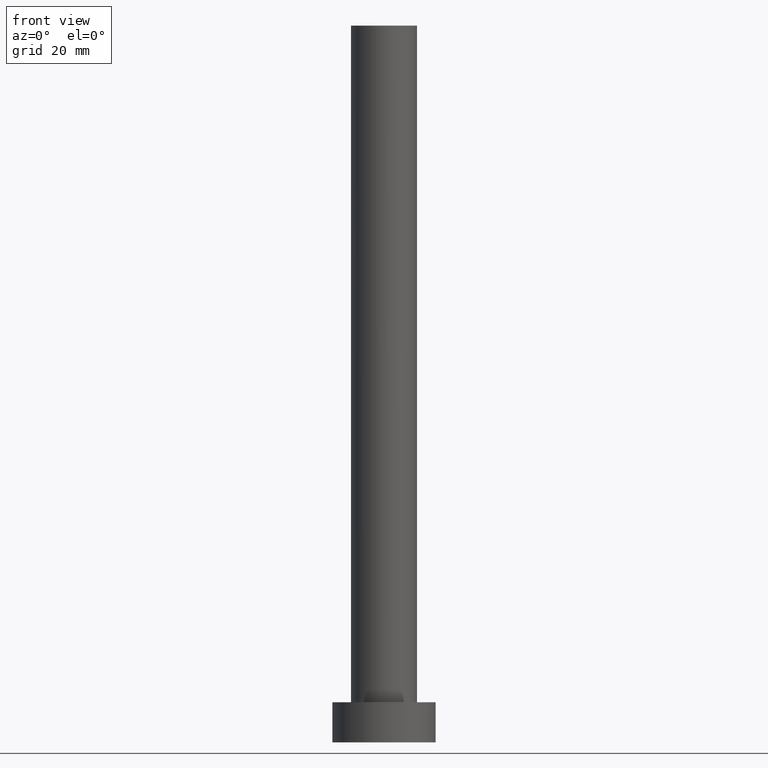
[diagram: clean part render]
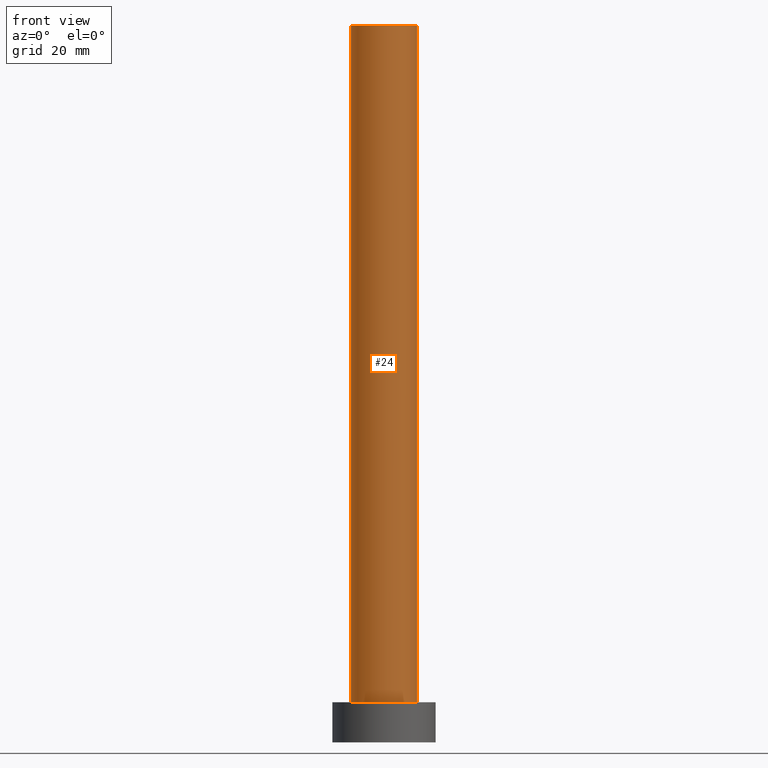
[diagram: same view with one face highlighted and labeled with its STEP entity id]
A machine part, front view. The second image highlights one B-rep face of the part: STEP entity #24.
In plain terms, the highlighted cylindrical surface (edge-blend (fillet) strip) has radius 5.75 mm, axis along (-0, -0, -1).
Its self-contained STEP definition (entity closure, byte-faithful):
#21 = VERTEX_POINT ( 'NONE', #156 ) ;
#24 = ADVANCED_FACE ( 'NONE', ( #229 ), #207, .T. ) ;
#27 = DIRECTION ( 'NONE',  ( -0.000000000000000000, -0.000000000000000000, -1.000000000000000000 ) ) ;
#28 = AXIS2_PLACEMENT_3D ( 'NONE', #77, #209, #48 ) ;
#47 = ORIENTED_EDGE ( 'NONE', *, *, #122, .F. ) ;
#48 = DIRECTION ( 'NONE',  ( 1.000000000000000000, 0.000000000000000000, 0.000000000000000000 ) ) ;
#49 = DIRECTION ( 'NONE',  ( -0.000000000000000000, -0.000000000000000000, -1.000000000000000000 ) ) ;
#52 = CARTESIAN_POINT ( 'NONE',  ( 0.000000000000000000, 0.000000000000000000, 125.0000000000000000 ) ) ;
#53 = AXIS2_PLACEMENT_3D ( 'NONE', #104, #27, #117 ) ;
#68 = ORIENTED_EDGE ( 'NONE', *, *, #142, .F. ) ;
#77 = CARTESIAN_POINT ( 'NONE',  ( 0.000000000000000000, 0.000000000000000000, 7.000000000000000000 ) ) ;
#78 = CIRCLE ( 'NONE', #248, 5.750000000000000000 ) ;
#85 = CARTESIAN_POINT ( 'NONE',  ( -5.750000000000000000, 0.000000000000000000, 125.0000000000000000 ) ) ;
#88 = ORIENTED_EDGE ( 'NONE', *, *, #125, .T. ) ;
#91 = VECTOR ( 'NONE', #49, 1000.000000000000000 ) ;
#93 = VERTEX_POINT ( 'NONE', #169 ) ;
#104 = CARTESIAN_POINT ( 'NONE',  ( 0.000000000000000000, 0.000000000000000000, 125.0000000000000000 ) ) ;
#111 = EDGE_LOOP ( 'NONE', ( #68, #47, #126, #88 ) ) ;
#117 = DIRECTION ( 'NONE',  ( -1.000000000000000000, 0.000000000000000000, 0.000000000000000000 ) ) ;
#122 = EDGE_CURVE ( 'NONE', #132, #146, #78, .T. ) ;
#125 = EDGE_CURVE ( 'NONE', #21, #93, #144, .T. ) ;
#126 = ORIENTED_EDGE ( 'NONE', *, *, #224, .T. ) ;
#132 = VERTEX_POINT ( 'NONE', #134 ) ;
#134 = CARTESIAN_POINT ( 'NONE',  ( -5.750000000000000000, 0.000000000000000000, 125.0000000000000000 ) ) ;
#137 = LINE ( 'NONE', #206, #202 ) ;
#142 = EDGE_CURVE ( 'NONE', #146, #93, #137, .T. ) ;
#144 = CIRCLE ( 'NONE', #28, 5.750000000000000000 ) ;
#146 = VERTEX_POINT ( 'NONE', #173 ) ;
#156 = CARTESIAN_POINT ( 'NONE',  ( -5.750000000000000000, 0.000000000000000000, 7.000000000000000000 ) ) ;
#169 = CARTESIAN_POINT ( 'NONE',  ( 5.750000000000000000, 7.041719095097280880E-16, 7.000000000000000000 ) ) ;
#173 = CARTESIAN_POINT ( 'NONE',  ( 5.750000000000000000, 7.041719095097280880E-16, 125.0000000000000000 ) ) ;
#202 = VECTOR ( 'NONE', #231, 1000.000000000000000 ) ;
#206 = CARTESIAN_POINT ( 'NONE',  ( 5.750000000000000000, 7.041719095097280880E-16, 125.0000000000000000 ) ) ;
#207 = CYLINDRICAL_SURFACE ( 'NONE', #53, 5.750000000000000000 ) ;
#209 = DIRECTION ( 'NONE',  ( 0.000000000000000000, 0.000000000000000000, 1.000000000000000000 ) ) ;
#222 = DIRECTION ( 'NONE',  ( 0.000000000000000000, 0.000000000000000000, 1.000000000000000000 ) ) ;
#224 = EDGE_CURVE ( 'NONE', #132, #21, #251, .T. ) ;
#225 = DIRECTION ( 'NONE',  ( 1.000000000000000000, 0.000000000000000000, 0.000000000000000000 ) ) ;
#229 = FACE_OUTER_BOUND ( 'NONE', #111, .T. ) ;
#231 = DIRECTION ( 'NONE',  ( -0.000000000000000000, -0.000000000000000000, -1.000000000000000000 ) ) ;
#248 = AXIS2_PLACEMENT_3D ( 'NONE', #52, #222, #225 ) ;
#251 = LINE ( 'NONE', #85, #91 ) ;